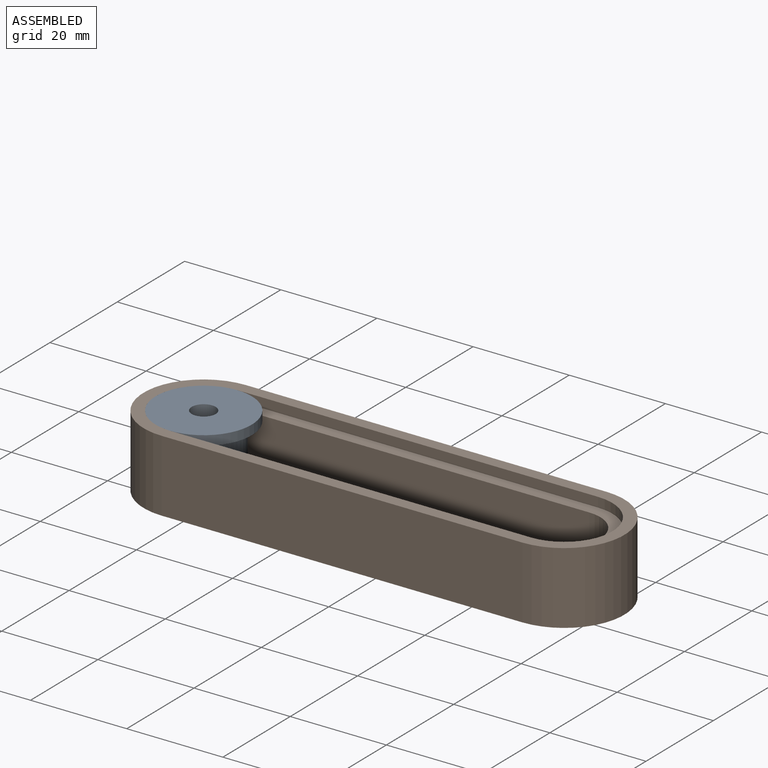
[diagram: assembled view]
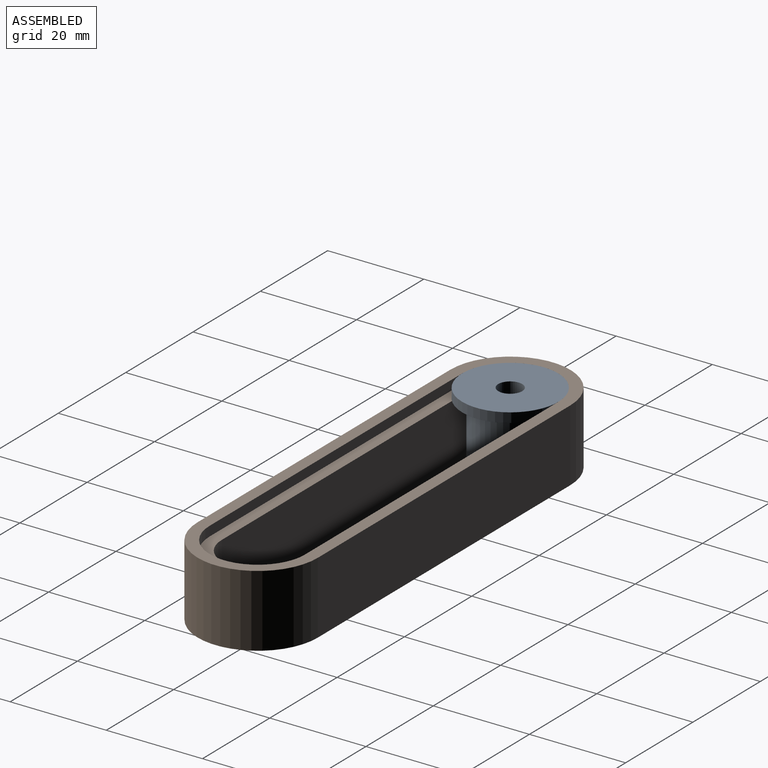
[diagram: assembled view, second angle]
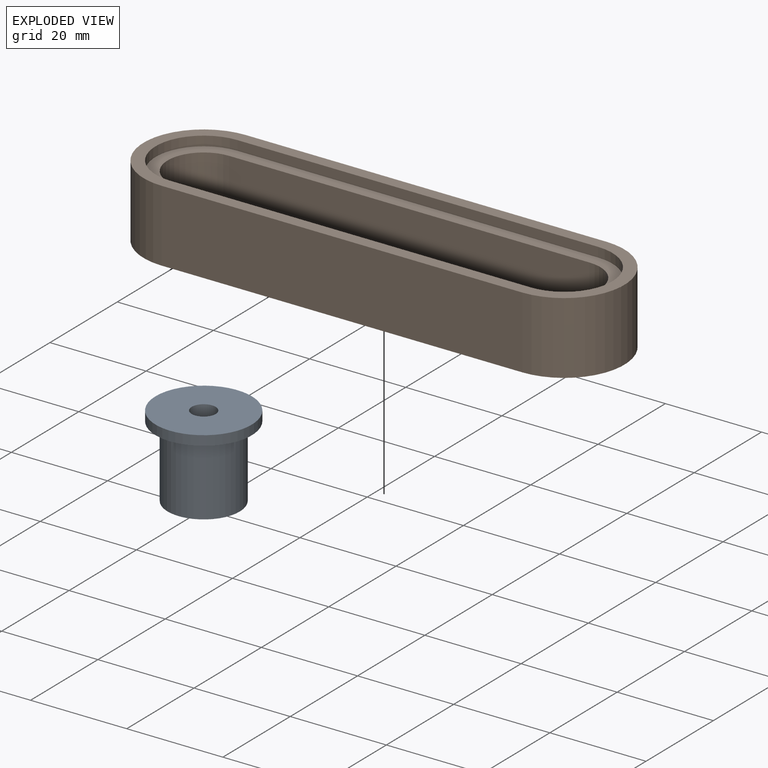
[diagram: exploded view]
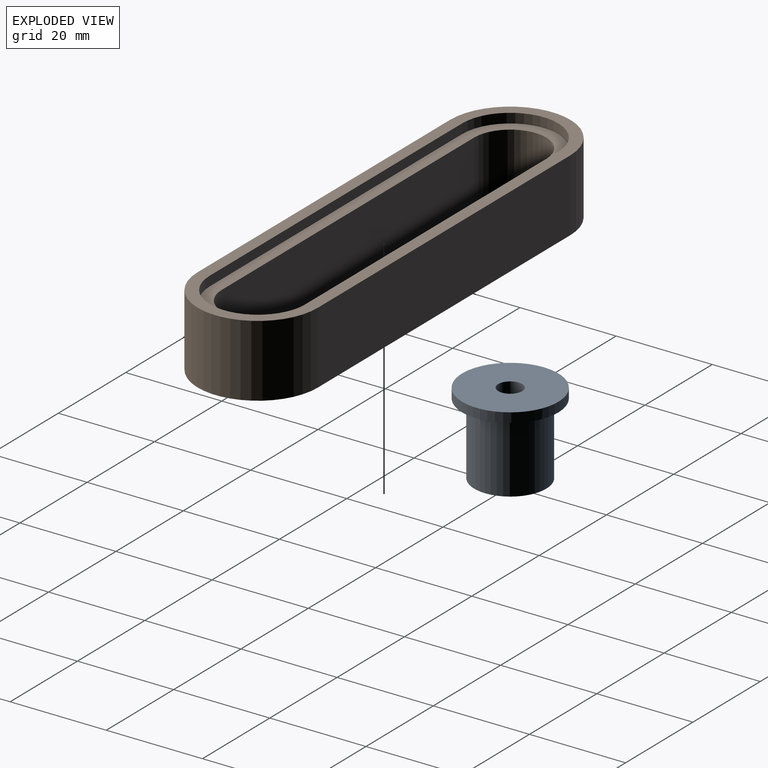
[diagram: exploded view, second angle]
ASSEMBLY  parts=2 mates=2
PART A: 6 faces, bbox 20x20x17 mm
  f0: cylinder r=2.5mm len=17mm, axis (0,0,-1), area 267mm2, adj f2,f4
  f1: cylinder r=7.5mm len=15mm, axis (0,0,-1), area 706.9mm2, adj f2,f5
  f2: plane 15x15mm, normal (0,0,1), area 157.1mm2, adj f0,f1
  f3: cylinder r=10mm len=20mm, axis (0,0,1), area 125.7mm2, adj f4,f5
  f4: plane 20x20mm, normal (0,0,-1), area 294.5mm2, adj f0,f3
  f5: plane 20x20mm, normal (0,0,1), area 137.4mm2, adj f1,f3
PART B: 15 faces, bbox 100x15x25 mm
  f0: cylinder r=7.5mm len=15mm, axis (0,1,0), area 306.3mm2, adj f1,f3,f9,f14
  f1: plane 75x13mm, normal (0,0,1), area 975mm2, adj f0,f2,f9,f14
  f2: cylinder r=7.5mm len=15mm, axis (0,1,0), area 306.3mm2, adj f1,f3,f9,f14
  f3: plane 75x13mm, normal (0,0,-1), area 975mm2, adj f0,f2,f9,f14
  f4: plane 100x25mm, normal (0,-1,0), area 551.7mm2, adj f5,f6,f7,f8,f10,f11,f12,f13
  f5: plane 75x15mm, normal (0,0,1), area 1125mm2, adj f4,f6,f8,f9
  f6: cylinder r=12.5mm len=25mm, axis (0,1,0), area 589mm2, adj f4,f5,f7,f9
  f7: plane 75x15mm, normal (0,0,-1), area 1125mm2, adj f4,f6,f8,f9
  f8: cylinder r=12.5mm len=25mm, axis (0,1,0), area 589mm2, adj f4,f5,f7,f9
  f9: plane 100x25mm, normal (0,1,0), area 1064.2mm2, adj f0,f1,f2,f3,f5,f6,f7,f8
  f10: plane 75x2mm, normal (0,0,1), area 150mm2, adj f4,f11,f13,f14
  f11: cylinder r=10mm len=20mm, axis (0,-1,0), area 62.8mm2, adj f4,f10,f12,f14
  f12: plane 75x2mm, normal (0,0,-1), area 150mm2, adj f4,f11,f13,f14
  f13: cylinder r=10mm len=20mm, axis (0,-1,0), area 62.8mm2, adj f4,f10,f12,f14
  f14: plane 95x20mm, normal (0,-1,0), area 512.4mm2, adj f0,f1,f2,f3,f10,f11,f12,f13
PLACE A rot(axis=(-1,0,0),180deg) t=(0,0,0)mm
PLACE B rot(axis=(-1,0,0),90deg) t=(0,0,-13)mm
MATE pin_slot B.f2 <-> A.f1  axis (0,0,1) through (0,0,0)mm
MATE planar A.f3 <-> B.f2  axis (0,0,-1) through (0,0,0)mm
